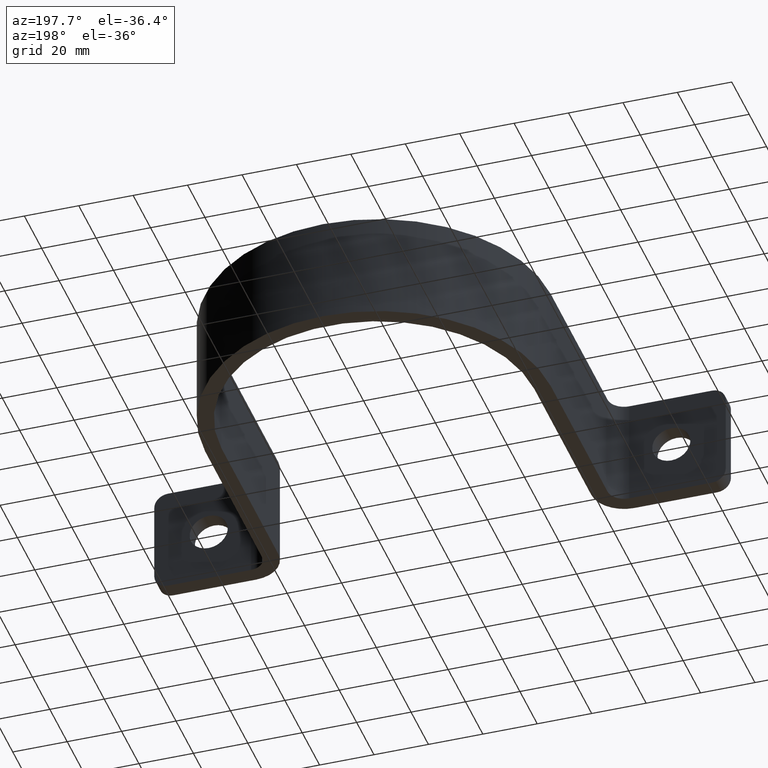
[diagram: clean part render]
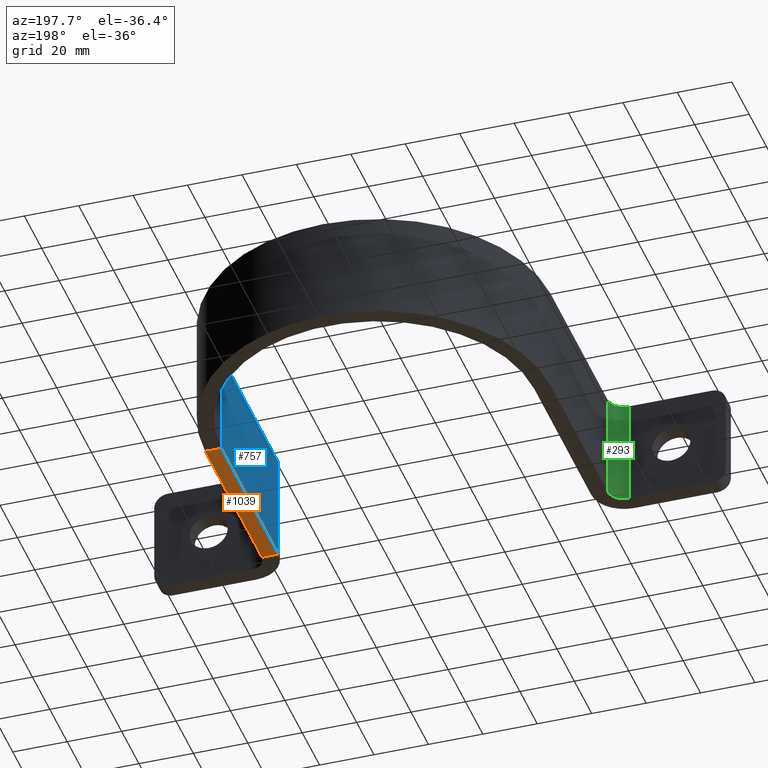
[diagram: same view with three faces highlighted in distinct colors, each labeled with its STEP entity id]
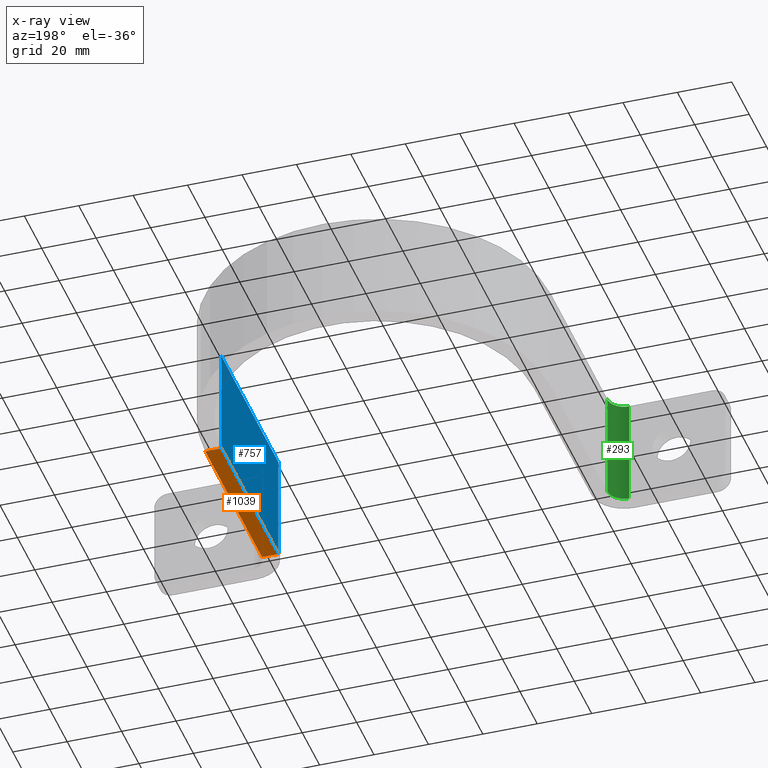
[diagram: x-ray of the same camera — body ghosted, the three highlighted faces saturated]
A machine part, auxiliary view with three faces highlighted in distinct colors.
The next image is the same camera in x-ray (body ghosted, the three faces saturated) — at least one of them is partly hidden behind the body in this view.
Their STEP definitions:

[orange] entity #1039 — the highlighted planar face has unit normal (-0, 0, -1).
#8 = ORIENTED_EDGE ( 'NONE', *, *, #146, .T. ) ;
#24 = VERTEX_POINT ( 'NONE', #1067 ) ;
#70 = CARTESIAN_POINT ( 'NONE',  ( -63.50000000000001421, 83.49999999999998579, -20.00000000000000000 ) ) ;
#146 = EDGE_CURVE ( 'NONE', #190, #762, #1000, .T. ) ;
#190 = VERTEX_POINT ( 'NONE', #823 ) ;
#205 = VECTOR ( 'NONE', #307, 1000.000000000000000 ) ;
#237 = PLANE ( 'NONE',  #811 ) ;
#307 = DIRECTION ( 'NONE',  ( -1.000000000000000000, 0.000000000000000000, 0.000000000000000000 ) ) ;
#347 = EDGE_CURVE ( 'NONE', #24, #572, #692, .T. ) ;
#397 = LINE ( 'NONE', #1009, #795 ) ;
#499 = FACE_OUTER_BOUND ( 'NONE', #1024, .T. ) ;
#567 = DIRECTION ( 'NONE',  ( -0.000000000000000000, -1.000000000000000000, 0.000000000000000000 ) ) ;
#572 = VERTEX_POINT ( 'NONE', #749 ) ;
#586 = DIRECTION ( 'NONE',  ( -1.000000000000000000, 0.000000000000000000, 0.000000000000000000 ) ) ;
#605 = CARTESIAN_POINT ( 'NONE',  ( 57.50000000000000711, 83.49999999999998579, -20.00000000000000000 ) ) ;
#645 = ORIENTED_EDGE ( 'NONE', *, *, #1080, .T. ) ;
#692 = LINE ( 'NONE', #605, #851 ) ;
#699 = LINE ( 'NONE', #947, #1081 ) ;
#710 = ORIENTED_EDGE ( 'NONE', *, *, #347, .T. ) ;
#749 = CARTESIAN_POINT ( 'NONE',  ( 63.50000000000001421, 83.49999999999998579, -20.00000000000000000 ) ) ;
#761 = DIRECTION ( 'NONE',  ( 1.000000000000000000, 0.000000000000000000, 0.000000000000000000 ) ) ;
#762 = VERTEX_POINT ( 'NONE', #849 ) ;
#770 = EDGE_CURVE ( 'NONE', #24, #762, #699, .T. ) ;
#795 = VECTOR ( 'NONE', #567, 1000.000000000000000 ) ;
#811 = AXIS2_PLACEMENT_3D ( 'NONE', #70, #820, #586 ) ;
#820 = DIRECTION ( 'NONE',  ( -0.000000000000000000, 0.000000000000000000, -1.000000000000000000 ) ) ;
#823 = CARTESIAN_POINT ( 'NONE',  ( 63.50000000000000000, 17.99999999999998934, -20.00000000000000000 ) ) ;
#849 = CARTESIAN_POINT ( 'NONE',  ( 57.50000000000000711, 17.99999999999998934, -20.00000000000000000 ) ) ;
#851 = VECTOR ( 'NONE', #761, 1000.000000000000000 ) ;
#914 = CARTESIAN_POINT ( 'NONE',  ( 63.50000000000000000, 17.99999999999998934, -20.00000000000000000 ) ) ;
#944 = DIRECTION ( 'NONE',  ( 0.000000000000000000, -1.000000000000000000, 0.000000000000000000 ) ) ;
#947 = CARTESIAN_POINT ( 'NONE',  ( 57.50000000000000711, 83.49999999999995737, -20.00000000000000000 ) ) ;
#1000 = LINE ( 'NONE', #914, #205 ) ;
#1009 = CARTESIAN_POINT ( 'NONE',  ( 63.50000000000001421, 83.49999999999995737, -20.00000000000000000 ) ) ;
#1024 = EDGE_LOOP ( 'NONE', ( #1093, #710, #645, #8 ) ) ;
#1039 = ADVANCED_FACE ( 'NONE', ( #499 ), #237, .T. ) ;
#1067 = CARTESIAN_POINT ( 'NONE',  ( 57.50000000000000711, 83.49999999999998579, -20.00000000000000000 ) ) ;
#1080 = EDGE_CURVE ( 'NONE', #572, #190, #397, .T. ) ;
#1081 = VECTOR ( 'NONE', #944, 1000.000000000000000 ) ;
#1093 = ORIENTED_EDGE ( 'NONE', *, *, #770, .F. ) ;

[blue] entity #757 — the highlighted planar face has unit normal (1, 0, -0).
#3 = ORIENTED_EDGE ( 'NONE', *, *, #356, .F. ) ;
#24 = VERTEX_POINT ( 'NONE', #1067 ) ;
#69 = VERTEX_POINT ( 'NONE', #240 ) ;
#71 = LINE ( 'NONE', #681, #452 ) ;
#134 = EDGE_LOOP ( 'NONE', ( #796, #693, #3, #306 ) ) ;
#240 = CARTESIAN_POINT ( 'NONE',  ( 57.50000000000000711, 83.49999999999998579, 20.00000000000000000 ) ) ;
#260 = DIRECTION ( 'NONE',  ( -0.000000000000000000, 0.000000000000000000, -1.000000000000000000 ) ) ;
#264 = DIRECTION ( 'NONE',  ( 1.000000000000000000, 0.000000000000000000, -0.000000000000000000 ) ) ;
#306 = ORIENTED_EDGE ( 'NONE', *, *, #367, .T. ) ;
#318 = AXIS2_PLACEMENT_3D ( 'NONE', #537, #264, #260 ) ;
#332 = CARTESIAN_POINT ( 'NONE',  ( 57.50000000000000711, 83.49999999999995737, 20.00000000000000000 ) ) ;
#356 = EDGE_CURVE ( 'NONE', #69, #458, #526, .T. ) ;
#367 = EDGE_CURVE ( 'NONE', #69, #24, #71, .T. ) ;
#448 = DIRECTION ( 'NONE',  ( -0.000000000000000000, -0.000000000000000000, -1.000000000000000000 ) ) ;
#452 = VECTOR ( 'NONE', #821, 1000.000000000000000 ) ;
#458 = VERTEX_POINT ( 'NONE', #1071 ) ;
#526 = LINE ( 'NONE', #332, #995 ) ;
#532 = PLANE ( 'NONE',  #318 ) ;
#537 = CARTESIAN_POINT ( 'NONE',  ( 57.50000000000000711, 83.49999999999995737, 20.00000000000000000 ) ) ;
#539 = VECTOR ( 'NONE', #448, 1000.000000000000000 ) ;
#625 = FACE_OUTER_BOUND ( 'NONE', #134, .T. ) ;
#681 = CARTESIAN_POINT ( 'NONE',  ( 57.50000000000000711, 83.49999999999998579, 20.00000000000000000 ) ) ;
#693 = ORIENTED_EDGE ( 'NONE', *, *, #804, .F. ) ;
#699 = LINE ( 'NONE', #947, #1081 ) ;
#757 = ADVANCED_FACE ( 'NONE', ( #625 ), #532, .F. ) ;
#762 = VERTEX_POINT ( 'NONE', #849 ) ;
#770 = EDGE_CURVE ( 'NONE', #24, #762, #699, .T. ) ;
#796 = ORIENTED_EDGE ( 'NONE', *, *, #770, .T. ) ;
#804 = EDGE_CURVE ( 'NONE', #458, #762, #928, .T. ) ;
#821 = DIRECTION ( 'NONE',  ( -0.000000000000000000, -0.000000000000000000, -1.000000000000000000 ) ) ;
#849 = CARTESIAN_POINT ( 'NONE',  ( 57.50000000000000711, 17.99999999999998934, -20.00000000000000000 ) ) ;
#852 = DIRECTION ( 'NONE',  ( 0.000000000000000000, -1.000000000000000000, 0.000000000000000000 ) ) ;
#928 = LINE ( 'NONE', #1026, #539 ) ;
#944 = DIRECTION ( 'NONE',  ( 0.000000000000000000, -1.000000000000000000, 0.000000000000000000 ) ) ;
#947 = CARTESIAN_POINT ( 'NONE',  ( 57.50000000000000711, 83.49999999999995737, -20.00000000000000000 ) ) ;
#995 = VECTOR ( 'NONE', #852, 1000.000000000000000 ) ;
#1026 = CARTESIAN_POINT ( 'NONE',  ( 57.50000000000000711, 17.99999999999998934, 20.00000000000000000 ) ) ;
#1067 = CARTESIAN_POINT ( 'NONE',  ( 57.50000000000000711, 83.49999999999998579, -20.00000000000000000 ) ) ;
#1071 = CARTESIAN_POINT ( 'NONE',  ( 57.50000000000000711, 17.99999999999998934, 20.00000000000000000 ) ) ;
#1081 = VECTOR ( 'NONE', #944, 1000.000000000000000 ) ;

[green] entity #293 — the highlighted cylindrical surface (edge-blend (fillet) strip) has radius 6 mm, axis along (-0, -0, -1).
#33 = DIRECTION ( 'NONE',  ( 1.000000000000000000, 0.000000000000000000, 0.000000000000000000 ) ) ;
#38 = CIRCLE ( 'NONE', #1016, 6.000000000000005329 ) ;
#63 = CARTESIAN_POINT ( 'NONE',  ( -69.50000000000000000, 11.99999999999997335, 20.00000000000000000 ) ) ;
#68 = CARTESIAN_POINT ( 'NONE',  ( -69.50000000000000000, 11.99999999999997335, 20.00000000000000000 ) ) ;
#153 = LINE ( 'NONE', #63, #1047 ) ;
#171 = VERTEX_POINT ( 'NONE', #68 ) ;
#229 = CARTESIAN_POINT ( 'NONE',  ( -69.50000000000000000, 11.99999999999997335, -20.00000000000000000 ) ) ;
#231 = CARTESIAN_POINT ( 'NONE',  ( -63.50000000000001421, 17.99999999999997513, -20.00000000000000000 ) ) ;
#250 = CARTESIAN_POINT ( 'NONE',  ( -69.50000000000000000, 17.99999999999997513, 20.00000000000000000 ) ) ;
#286 = ORIENTED_EDGE ( 'NONE', *, *, #1072, .F. ) ;
#293 = ADVANCED_FACE ( 'NONE', ( #351 ), #534, .F. ) ;
#316 = DIRECTION ( 'NONE',  ( -0.000000000000000000, -0.000000000000000000, -1.000000000000000000 ) ) ;
#351 = FACE_OUTER_BOUND ( 'NONE', #542, .T. ) ;
#357 = VERTEX_POINT ( 'NONE', #679 ) ;
#374 = CARTESIAN_POINT ( 'NONE',  ( -69.50000000000000000, 17.99999999999997513, -20.00000000000000000 ) ) ;
#392 = AXIS2_PLACEMENT_3D ( 'NONE', #1052, #642, #469 ) ;
#418 = DIRECTION ( 'NONE',  ( -0.000000000000000000, -0.000000000000000000, -1.000000000000000000 ) ) ;
#439 = DIRECTION ( 'NONE',  ( -1.000000000000000000, 0.000000000000000000, 0.000000000000000000 ) ) ;
#456 = EDGE_CURVE ( 'NONE', #357, #706, #735, .T. ) ;
#469 = DIRECTION ( 'NONE',  ( 1.000000000000000000, 0.000000000000000000, 0.000000000000000000 ) ) ;
#477 = ORIENTED_EDGE ( 'NONE', *, *, #456, .T. ) ;
#505 = VECTOR ( 'NONE', #316, 1000.000000000000000 ) ;
#534 = CYLINDRICAL_SURFACE ( 'NONE', #938, 6.000000000000005329 ) ;
#542 = EDGE_LOOP ( 'NONE', ( #744, #286, #932, #477 ) ) ;
#642 = DIRECTION ( 'NONE',  ( 0.000000000000000000, 0.000000000000000000, 1.000000000000000000 ) ) ;
#679 = CARTESIAN_POINT ( 'NONE',  ( -63.50000000000001421, 17.99999999999997513, 20.00000000000000000 ) ) ;
#697 = DIRECTION ( 'NONE',  ( -0.000000000000000000, -0.000000000000000000, -1.000000000000000000 ) ) ;
#706 = VERTEX_POINT ( 'NONE', #231 ) ;
#735 = LINE ( 'NONE', #740, #505 ) ;
#740 = CARTESIAN_POINT ( 'NONE',  ( -63.50000000000001421, 17.99999999999997513, 20.00000000000000000 ) ) ;
#744 = ORIENTED_EDGE ( 'NONE', *, *, #984, .F. ) ;
#766 = CIRCLE ( 'NONE', #392, 6.000000000000005329 ) ;
#806 = DIRECTION ( 'NONE',  ( 0.000000000000000000, 0.000000000000000000, 1.000000000000000000 ) ) ;
#932 = ORIENTED_EDGE ( 'NONE', *, *, #948, .T. ) ;
#938 = AXIS2_PLACEMENT_3D ( 'NONE', #250, #697, #439 ) ;
#948 = EDGE_CURVE ( 'NONE', #171, #357, #766, .T. ) ;
#984 = EDGE_CURVE ( 'NONE', #1031, #706, #38, .T. ) ;
#1016 = AXIS2_PLACEMENT_3D ( 'NONE', #374, #806, #33 ) ;
#1031 = VERTEX_POINT ( 'NONE', #229 ) ;
#1047 = VECTOR ( 'NONE', #418, 1000.000000000000000 ) ;
#1052 = CARTESIAN_POINT ( 'NONE',  ( -69.50000000000000000, 17.99999999999997513, 20.00000000000000000 ) ) ;
#1072 = EDGE_CURVE ( 'NONE', #171, #1031, #153, .T. ) ;